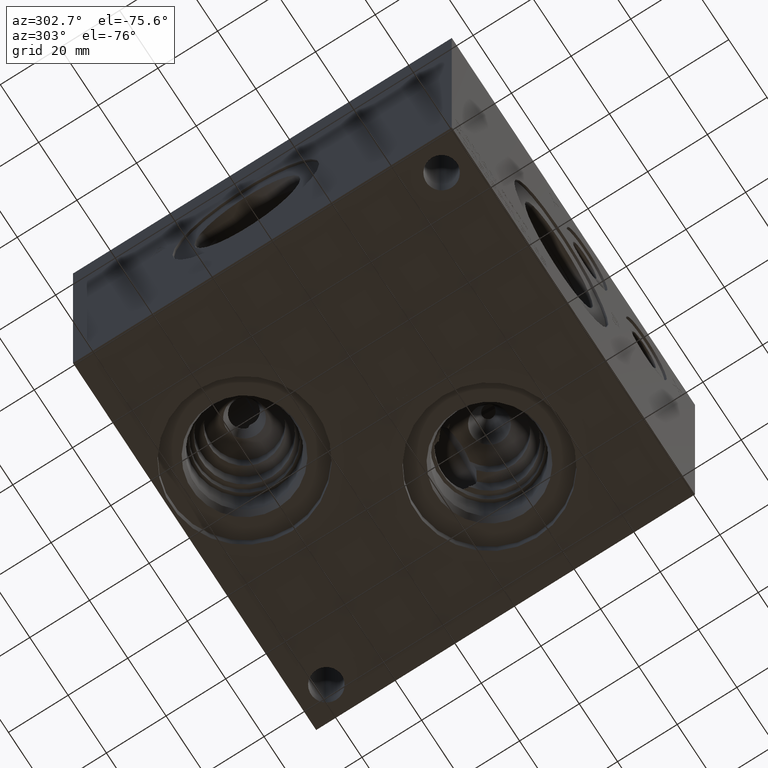
[diagram: clean part render]
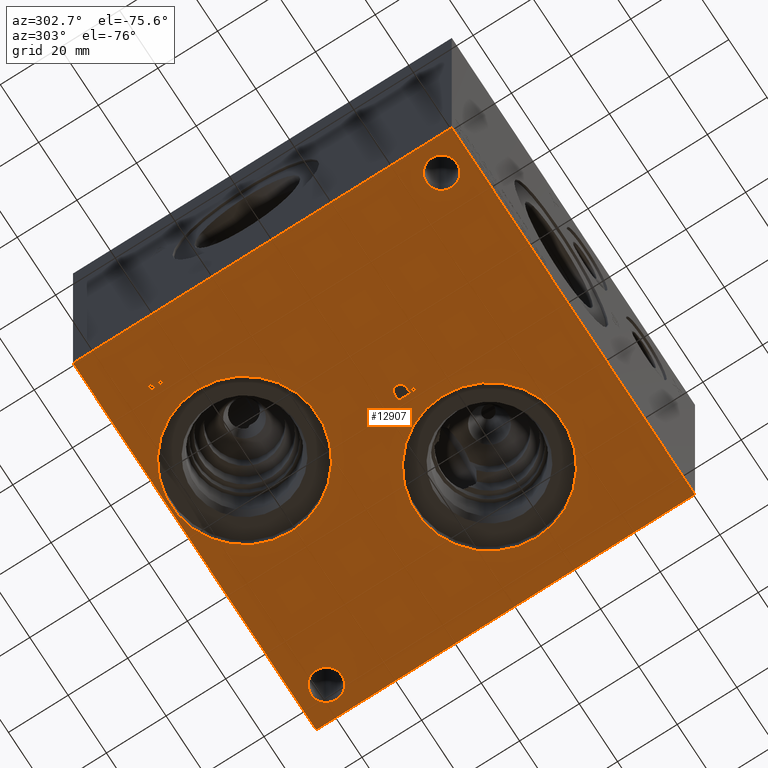
[diagram: same view with one face highlighted and labeled with its STEP entity id]
A machine part, auxiliary view. The second image highlights one B-rep face of the part: STEP entity #12907.
In plain terms, the highlighted planar face has unit normal (0, 0, 1).
Its self-contained STEP definition (entity closure, byte-faithful):
#172=CIRCLE('',#13617,5.1562);
#173=CIRCLE('',#13618,5.1562);
#174=CIRCLE('',#13619,24.5618);
#175=CIRCLE('',#13620,24.5618);
#176=CIRCLE('',#13621,24.5618);
#177=CIRCLE('',#13622,24.5618);
#481=FACE_BOUND('',#1691,.T.);
#482=FACE_BOUND('',#1692,.T.);
#483=FACE_BOUND('',#1693,.T.);
#484=FACE_BOUND('',#1694,.T.);
#485=FACE_BOUND('',#1695,.T.);
#486=FACE_BOUND('',#1696,.T.);
#592=PLANE('',#13616);
#986=FACE_OUTER_BOUND('',#1690,.T.);
#1690=EDGE_LOOP('',(#8541,#8542,#8543,#8544));
#1691=EDGE_LOOP('',(#8545));
#1692=EDGE_LOOP('',(#8546));
#1693=EDGE_LOOP('',(#8547,#8548));
#1694=EDGE_LOOP('',(#8549,#8550));
#1695=EDGE_LOOP('',(#8551,#8552,#8553,#8554,#8555,#8556,#8557,#8558));
#1696=EDGE_LOOP('',(#8559,#8560,#8561,#8562,#8563,#8564,#8565,#8566,#8567));
#2494=LINE('',#17544,#3735);
#2497=LINE('',#17550,#3738);
#2500=LINE('',#17556,#3741);
#2503=LINE('',#17562,#3744);
#2506=LINE('',#17568,#3747);
#2510=LINE('',#17611,#3751);
#2511=LINE('',#17613,#3752);
#2512=LINE('',#17615,#3753);
#2513=LINE('',#17616,#3754);
#2514=LINE('',#17631,#3755);
#2515=LINE('',#17633,#3756);
#2516=LINE('',#17635,#3757);
#2517=LINE('',#17637,#3758);
#2518=LINE('',#17639,#3759);
#2519=LINE('',#17641,#3760);
#2520=LINE('',#17643,#3761);
#2521=LINE('',#17644,#3762);
#3735=VECTOR('',#14485,10.);
#3738=VECTOR('',#14490,10.);
#3741=VECTOR('',#14495,10.);
#3744=VECTOR('',#14500,10.);
#3747=VECTOR('',#14505,10.);
#3751=VECTOR('',#14513,10.);
#3752=VECTOR('',#14514,10.);
#3753=VECTOR('',#14515,10.);
#3754=VECTOR('',#14516,10.);
#3755=VECTOR('',#14529,10.);
#3756=VECTOR('',#14530,10.);
#3757=VECTOR('',#14531,10.);
#3758=VECTOR('',#14532,10.);
#3759=VECTOR('',#14533,10.);
#3760=VECTOR('',#14534,10.);
#3761=VECTOR('',#14535,10.);
#3762=VECTOR('',#14536,10.);
#4968=B_SPLINE_CURVE_WITH_KNOTS('',2,(#17511,#17512,#17513,#17514),
 .UNSPECIFIED.,.F.,.F.,(3,1,3),(0.,1.,2.),.UNSPECIFIED.);
#4970=B_SPLINE_CURVE_WITH_KNOTS('',2,(#17532,#17533,#17534,#17535),
 .UNSPECIFIED.,.F.,.F.,(3,1,3),(0.,1.,2.),.UNSPECIFIED.);
#4972=B_SPLINE_CURVE_WITH_KNOTS('',2,(#17581,#17582,#17583,#17584),
 .UNSPECIFIED.,.F.,.F.,(3,1,3),(0.,1.,2.),.UNSPECIFIED.);
#4974=B_SPLINE_CURVE_WITH_KNOTS('',2,(#17599,#17600,#17601,#17602),
 .UNSPECIFIED.,.F.,.F.,(3,1,3),(0.,1.,2.),.UNSPECIFIED.);
#5311=VERTEX_POINT('',#17509);
#5312=VERTEX_POINT('',#17510);
#5315=VERTEX_POINT('',#17531);
#5317=VERTEX_POINT('',#17543);
#5319=VERTEX_POINT('',#17549);
#5321=VERTEX_POINT('',#17555);
#5323=VERTEX_POINT('',#17561);
#5325=VERTEX_POINT('',#17567);
#5327=VERTEX_POINT('',#17580);
#5329=VERTEX_POINT('',#17609);
#5330=VERTEX_POINT('',#17610);
#5331=VERTEX_POINT('',#17612);
#5332=VERTEX_POINT('',#17614);
#5333=VERTEX_POINT('',#17617);
#5334=VERTEX_POINT('',#17619);
#5335=VERTEX_POINT('',#17621);
#5336=VERTEX_POINT('',#17622);
#5337=VERTEX_POINT('',#17625);
#5338=VERTEX_POINT('',#17626);
#5339=VERTEX_POINT('',#17629);
#5340=VERTEX_POINT('',#17630);
#5341=VERTEX_POINT('',#17632);
#5342=VERTEX_POINT('',#17634);
#5343=VERTEX_POINT('',#17636);
#5344=VERTEX_POINT('',#17638);
#5345=VERTEX_POINT('',#17640);
#5346=VERTEX_POINT('',#17642);
#6596=EDGE_CURVE('',#5311,#5312,#4968,.T.);
#6600=EDGE_CURVE('',#5315,#5311,#4970,.T.);
#6603=EDGE_CURVE('',#5317,#5315,#2494,.T.);
#6606=EDGE_CURVE('',#5319,#5317,#2497,.T.);
#6609=EDGE_CURVE('',#5321,#5319,#2500,.T.);
#6612=EDGE_CURVE('',#5323,#5321,#2503,.T.);
#6615=EDGE_CURVE('',#5325,#5323,#2506,.T.);
#6618=EDGE_CURVE('',#5327,#5325,#4972,.T.);
#6621=EDGE_CURVE('',#5312,#5327,#4974,.T.);
#6623=EDGE_CURVE('',#5329,#5330,#2510,.T.);
#6624=EDGE_CURVE('',#5331,#5329,#2511,.T.);
#6625=EDGE_CURVE('',#5332,#5331,#2512,.T.);
#6626=EDGE_CURVE('',#5330,#5332,#2513,.T.);
#6627=EDGE_CURVE('',#5333,#5333,#172,.T.);
#6628=EDGE_CURVE('',#5334,#5334,#173,.T.);
#6629=EDGE_CURVE('',#5335,#5336,#174,.T.);
#6630=EDGE_CURVE('',#5336,#5335,#175,.T.);
#6631=EDGE_CURVE('',#5337,#5338,#176,.T.);
#6632=EDGE_CURVE('',#5338,#5337,#177,.T.);
#6633=EDGE_CURVE('',#5339,#5340,#2514,.T.);
#6634=EDGE_CURVE('',#5340,#5341,#2515,.T.);
#6635=EDGE_CURVE('',#5341,#5342,#2516,.T.);
#6636=EDGE_CURVE('',#5342,#5343,#2517,.T.);
#6637=EDGE_CURVE('',#5343,#5344,#2518,.T.);
#6638=EDGE_CURVE('',#5344,#5345,#2519,.T.);
#6639=EDGE_CURVE('',#5345,#5346,#2520,.T.);
#6640=EDGE_CURVE('',#5346,#5339,#2521,.T.);
#8541=ORIENTED_EDGE('',*,*,#6623,.F.);
#8542=ORIENTED_EDGE('',*,*,#6624,.F.);
#8543=ORIENTED_EDGE('',*,*,#6625,.F.);
#8544=ORIENTED_EDGE('',*,*,#6626,.F.);
#8545=ORIENTED_EDGE('',*,*,#6627,.T.);
#8546=ORIENTED_EDGE('',*,*,#6628,.T.);
#8547=ORIENTED_EDGE('',*,*,#6629,.T.);
#8548=ORIENTED_EDGE('',*,*,#6630,.T.);
#8549=ORIENTED_EDGE('',*,*,#6631,.T.);
#8550=ORIENTED_EDGE('',*,*,#6632,.T.);
#8551=ORIENTED_EDGE('',*,*,#6633,.T.);
#8552=ORIENTED_EDGE('',*,*,#6634,.T.);
#8553=ORIENTED_EDGE('',*,*,#6635,.T.);
#8554=ORIENTED_EDGE('',*,*,#6636,.T.);
#8555=ORIENTED_EDGE('',*,*,#6637,.T.);
#8556=ORIENTED_EDGE('',*,*,#6638,.T.);
#8557=ORIENTED_EDGE('',*,*,#6639,.T.);
#8558=ORIENTED_EDGE('',*,*,#6640,.T.);
#8559=ORIENTED_EDGE('',*,*,#6596,.T.);
#8560=ORIENTED_EDGE('',*,*,#6621,.T.);
#8561=ORIENTED_EDGE('',*,*,#6618,.T.);
#8562=ORIENTED_EDGE('',*,*,#6615,.T.);
#8563=ORIENTED_EDGE('',*,*,#6612,.T.);
#8564=ORIENTED_EDGE('',*,*,#6609,.T.);
#8565=ORIENTED_EDGE('',*,*,#6606,.T.);
#8566=ORIENTED_EDGE('',*,*,#6603,.T.);
#8567=ORIENTED_EDGE('',*,*,#6600,.T.);
#12907=ADVANCED_FACE('',(#986,#481,#482,#483,#484,#485,#486),#592,.F.);
#13616=AXIS2_PLACEMENT_3D('',#17608,#14511,#14512);
#13617=AXIS2_PLACEMENT_3D('',#17618,#14517,#14518);
#13618=AXIS2_PLACEMENT_3D('',#17620,#14519,#14520);
#13619=AXIS2_PLACEMENT_3D('',#17623,#14521,#14522);
#13620=AXIS2_PLACEMENT_3D('',#17624,#14523,#14524);
#13621=AXIS2_PLACEMENT_3D('',#17627,#14525,#14526);
#13622=AXIS2_PLACEMENT_3D('',#17628,#14527,#14528);
#14485=DIRECTION('',(-1.,0.,0.));
#14490=DIRECTION('',(-4.19611858128769E-15,1.,0.));
#14495=DIRECTION('',(1.,0.,0.));
#14500=DIRECTION('',(3.75218139805001E-15,-1.,0.));
#14505=DIRECTION('',(1.,0.,0.));
#14511=DIRECTION('center_axis',(0.,0.,1.));
#14512=DIRECTION('ref_axis',(1.,0.,0.));
#14513=DIRECTION('',(1.,0.,0.));
#14514=DIRECTION('',(0.,-1.,0.));
#14515=DIRECTION('',(-1.,0.,0.));
#14516=DIRECTION('',(0.,1.,0.));
#14517=DIRECTION('center_axis',(0.,0.,1.));
#14518=DIRECTION('ref_axis',(1.,0.,0.));
#14519=DIRECTION('center_axis',(0.,0.,1.));
#14520=DIRECTION('ref_axis',(1.,0.,0.));
#14521=DIRECTION('center_axis',(0.,0.,1.));
#14522=DIRECTION('ref_axis',(1.,0.,0.));
#14523=DIRECTION('center_axis',(0.,0.,1.));
#14524=DIRECTION('ref_axis',(1.,0.,0.));
#14525=DIRECTION('center_axis',(0.,0.,1.));
#14526=DIRECTION('ref_axis',(1.,0.,0.));
#14527=DIRECTION('center_axis',(0.,0.,1.));
#14528=DIRECTION('ref_axis',(1.,0.,0.));
#14529=DIRECTION('',(1.,0.,0.));
#14530=DIRECTION('',(-3.17280044688052E-15,1.,0.));
#14531=DIRECTION('',(1.,0.,0.));
#14532=DIRECTION('',(-5.91097069555817E-15,1.,0.));
#14533=DIRECTION('',(-1.,-3.47984565141734E-15,0.));
#14534=DIRECTION('',(5.91097069555817E-15,-1.,0.));
#14535=DIRECTION('',(1.,8.33818088455555E-15,0.));
#14536=DIRECTION('',(3.17280044688052E-15,-1.,0.));
#17509=CARTESIAN_POINT('',(55.5354327976406,55.2297681439707,0.));
#17510=CARTESIAN_POINT('',(54.778990345468,53.711737372604,0.));
#17511=CARTESIAN_POINT('Ctrl Pts',(55.5354327976406,55.2297681439707,0.));
#17512=CARTESIAN_POINT('Ctrl Pts',(55.1803679731514,54.9879123939564,0.));
#17513=CARTESIAN_POINT('Ctrl Pts',(54.778990345468,54.2417616758269,0.));
#17514=CARTESIAN_POINT('Ctrl Pts',(54.778990345468,53.711737372604,0.));
#17531=CARTESIAN_POINT('',(57.1975478456117,55.6259999046326,0.));
#17532=CARTESIAN_POINT('Ctrl Pts',(57.1975478456117,55.6259999046326,0.));
#17533=CARTESIAN_POINT('Ctrl Pts',(56.6315024732376,55.6259999046326,0.));
#17534=CARTESIAN_POINT('Ctrl Pts',(55.8390389519139,55.4407486918556,0.));
#17535=CARTESIAN_POINT('Ctrl Pts',(55.5354327976406,55.2297681439707,0.));
#17543=CARTESIAN_POINT('',(58.7927666223022,55.6259999046326,0.));
#17544=CARTESIAN_POINT('',(61.1463833111511,55.6259999046326,0.));
#17549=CARTESIAN_POINT('',(58.7927666223022,49.276,0.));
#17550=CARTESIAN_POINT('',(58.7927666223022,56.388,0.));
#17555=CARTESIAN_POINT('',(57.9488444307627,49.276,0.));
#17556=CARTESIAN_POINT('',(60.7244222153814,49.276,0.));
#17561=CARTESIAN_POINT('',(57.9488444307627,51.6430988299279,0.));
#17562=CARTESIAN_POINT('',(57.9488444307627,57.5715494149639,0.));
#17567=CARTESIAN_POINT('',(57.2335689147628,51.6430988299279,0.));
#17568=CARTESIAN_POINT('',(60.3667844573814,51.6430988299279,0.));
#17580=CARTESIAN_POINT('',(55.3347439837989,52.3017698086904,0.));
#17581=CARTESIAN_POINT('Ctrl Pts',(55.3347439837989,52.3017698086904,0.));
#17582=CARTESIAN_POINT('Ctrl Pts',(55.6640794731802,51.9775801863307,0.));
#17583=CARTESIAN_POINT('Ctrl Pts',(56.5543144679139,51.6430988299279,0.));
#17584=CARTESIAN_POINT('Ctrl Pts',(57.2335689147628,51.6430988299279,0.));
#17599=CARTESIAN_POINT('Ctrl Pts',(54.778990345468,53.711737372604,0.));
#17600=CARTESIAN_POINT('Ctrl Pts',(54.778990345468,53.3000680108774,0.));
#17601=CARTESIAN_POINT('Ctrl Pts',(55.0723047656982,52.5590631597695,0.));
#17602=CARTESIAN_POINT('Ctrl Pts',(55.3347439837989,52.3017698086904,0.));
#17608=CARTESIAN_POINT('Origin',(63.5,63.5,0.));
#17609=CARTESIAN_POINT('',(0.,0.,0.));
#17610=CARTESIAN_POINT('',(127.,0.,0.));
#17611=CARTESIAN_POINT('',(0.,0.,0.));
#17612=CARTESIAN_POINT('',(0.,127.,0.));
#17613=CARTESIAN_POINT('',(0.,127.,0.));
#17614=CARTESIAN_POINT('',(127.,127.,0.));
#17615=CARTESIAN_POINT('',(127.,127.,0.));
#17616=CARTESIAN_POINT('',(127.,0.,0.));
#17617=CARTESIAN_POINT('',(112.3188,117.475,0.));
#17618=CARTESIAN_POINT('Origin',(117.475,117.475,0.));
#17619=CARTESIAN_POINT('',(4.3688,9.525,0.));
#17620=CARTESIAN_POINT('Origin',(9.525,9.525,0.));
#17621=CARTESIAN_POINT('',(113.4618,44.45,0.));
#17622=CARTESIAN_POINT('',(64.3382,44.45,0.));
#17623=CARTESIAN_POINT('Origin',(88.9,44.45,0.));
#17624=CARTESIAN_POINT('Origin',(88.9,44.45,0.));
#17625=CARTESIAN_POINT('',(74.5744,101.6,0.));
#17626=CARTESIAN_POINT('',(25.4508,101.6,0.));
#17627=CARTESIAN_POINT('Origin',(50.0126,101.6,0.));
#17628=CARTESIAN_POINT('Origin',(50.0126,101.6,0.));
#17629=CARTESIAN_POINT('',(17.668334728547,106.3625,0.));
#17630=CARTESIAN_POINT('',(18.5122569200865,106.3625,0.));
#17631=CARTESIAN_POINT('',(40.5841673642735,106.3625,0.));
#17632=CARTESIAN_POINT('',(18.5122569200865,111.961203319482,0.));
#17633=CARTESIAN_POINT('',(18.5122569200866,84.9312499999999,0.));
#17634=CARTESIAN_POINT('',(20.6426458670216,111.961203319482,0.));
#17635=CARTESIAN_POINT('',(41.0061284600433,111.961203319482,0.));
#17636=CARTESIAN_POINT('',(20.6426458670216,112.712499904633,0.));
#17637=CARTESIAN_POINT('',(20.6426458670217,87.7306016597407,0.));
#17638=CARTESIAN_POINT('',(15.5379457816119,112.712499904633,0.));
#17639=CARTESIAN_POINT('',(42.0713229335107,112.712499904633,0.));
#17640=CARTESIAN_POINT('',(15.5379457816119,111.961203319482,0.));
#17641=CARTESIAN_POINT('',(15.5379457816121,88.1062499523161,0.));
#17642=CARTESIAN_POINT('',(17.668334728547,111.961203319482,0.));
#17643=CARTESIAN_POINT('',(39.5189728908058,111.961203319482,0.));
#17644=CARTESIAN_POINT('',(17.6683347285471,87.7306016597407,0.));